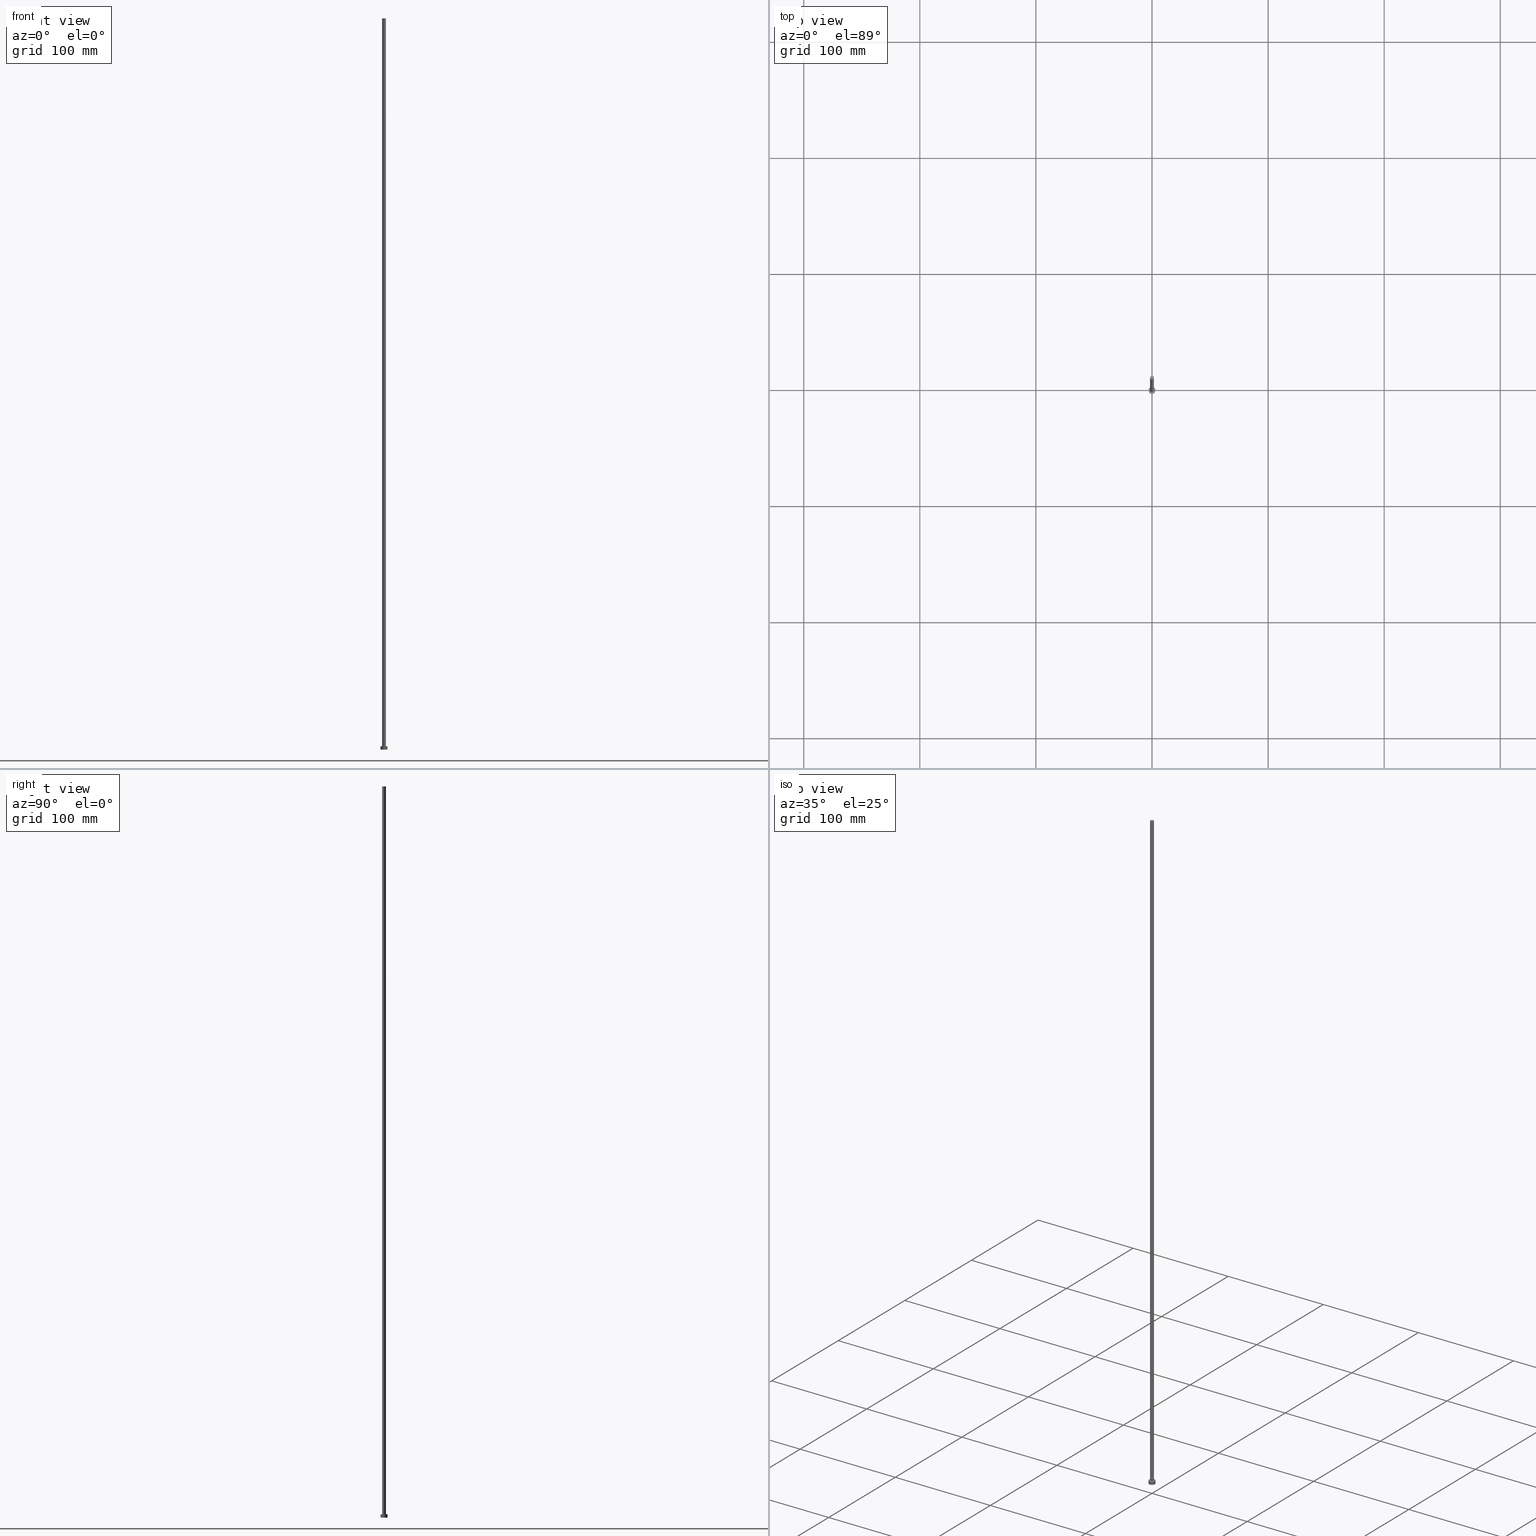
[diagram: canonical four-view strip — front | top / right | iso, engineering-drawing reading convention]
A machine part, canonical four-view strip (front | top / right | iso — engineering-drawing reading convention). The complete STEP part file that produces these views, byte-faithful:
ISO-10303-21;
HEADER;
FILE_DESCRIPTION (( 'STEP AP203' ),
    '1' );
FILE_NAME ('c56d.STEP',
    '2023-02-13T16:51:49',
    ( '' ),
    ( '' ),
    'SwSTEP 2.0',
    'SolidWorks 2019',
    '' );
FILE_SCHEMA (( 'CONFIG_CONTROL_DESIGN' ));
ENDSEC;

DATA;
#1 = PERSON_AND_ORGANIZATION_ROLE ( 'creator' ) ;
#2 = EDGE_CURVE ( 'NONE', #231, #105, #174, .T. ) ;
#3 = ORIENTED_EDGE ( 'NONE', *, *, #88, .T. ) ;
#4 = MECHANICAL_CONTEXT ( 'NONE', #71, 'mechanical' ) ;
#5 = ORIENTED_EDGE ( 'NONE', *, *, #161, .T. ) ;
#6 = CC_DESIGN_PERSON_AND_ORGANIZATION_ASSIGNMENT ( #117, #104, ( #233 ) ) ;
#7 = CYLINDRICAL_SURFACE ( 'NONE', #236, 1.600000000000000089 ) ;
#8 = DATE_TIME_ROLE ( 'creation_date' ) ;
#9 = ORIENTED_EDGE ( 'NONE', *, *, #237, .F. ) ;
#10 = DIRECTION ( 'NONE',  ( -0.000000000000000000, -0.000000000000000000, -1.000000000000000000 ) ) ;
#11 = CIRCLE ( 'NONE', #67, 1.600000000000000089 ) ;
#12 = DIRECTION ( 'NONE',  ( -1.000000000000000000, 0.000000000000000000, 0.000000000000000000 ) ) ;
#13 = FACE_OUTER_BOUND ( 'NONE', #51, .T. ) ;
#14 = DIRECTION ( 'NONE',  ( 1.000000000000000000, 0.000000000000000000, 0.000000000000000000 ) ) ;
#15 = CARTESIAN_POINT ( 'NONE',  ( 0.000000000000000000, 0.000000000000000000, 3.000000000000000000 ) ) ;
#16 = DIRECTION ( 'NONE',  ( 0.000000000000000000, 0.000000000000000000, 1.000000000000000000 ) ) ;
#17 = FACE_OUTER_BOUND ( 'NONE', #230, .T. ) ;
#18 = DIRECTION ( 'NONE',  ( 0.000000000000000000, 0.000000000000000000, 1.000000000000000000 ) ) ;
#19 = VECTOR ( 'NONE', #250, 1000.000000000000000 ) ;
#20 = ADVANCED_FACE ( 'NONE', ( #107 ), #91, .T. ) ;
#21 = PERSON_AND_ORGANIZATION_ROLE ( 'design_supplier' ) ;
#22 = PRODUCT_RELATED_PRODUCT_CATEGORY ( 'detail', '', ( #233 ) ) ;
#23 = COORDINATED_UNIVERSAL_TIME_OFFSET ( 1, 0, .AHEAD. ) ;
#24 = ORIENTED_EDGE ( 'NONE', *, *, #160, .T. ) ;
#25 = VECTOR ( 'NONE', #213, 1000.000000000000000 ) ;
#26 = DIRECTION ( 'NONE',  ( 1.000000000000000000, 0.000000000000000000, 0.000000000000000000 ) ) ;
#27 = AXIS2_PLACEMENT_3D ( 'NONE', #182, #123, #49 ) ;
#28 = ORIENTED_EDGE ( 'NONE', *, *, #133, .T. ) ;
#29 = UNCERTAINTY_MEASURE_WITH_UNIT (LENGTH_MEASURE( 1.000000000000000082E-05 ), #35, 'distance_accuracy_value', 'NONE');
#30 = ORGANIZATION ( 'NEUR�EN�', 'NEUR�EN�', '' ) ;
#31 = PERSON_AND_ORGANIZATION ( #98, #30 ) ;
#32 = ORIENTED_EDGE ( 'NONE', *, *, #160, .F. ) ;
#33 = CARTESIAN_POINT ( 'NONE',  ( 0.000000000000000000, 0.000000000000000000, 0.000000000000000000 ) ) ;
#34 = APPROVAL_PERSON_ORGANIZATION ( #239, #225, #61 ) ;
#35 =( LENGTH_UNIT ( ) NAMED_UNIT ( * ) SI_UNIT ( .MILLI., .METRE. ) );
#36 =( NAMED_UNIT ( * ) SI_UNIT ( $, .STERADIAN. ) SOLID_ANGLE_UNIT ( ) );
#37 = CARTESIAN_POINT ( 'NONE',  ( 0.000000000000000000, 0.000000000000000000, 3.000000000000000000 ) ) ;
#38 = CLOSED_SHELL ( 'NONE', ( #46, #214, #20, #141, #95, #83, #193 ) ) ;
#39 = DIRECTION ( 'NONE',  ( 0.000000000000000000, 0.000000000000000000, 1.000000000000000000 ) ) ;
#40 = SECURITY_CLASSIFICATION_LEVEL ( 'unclassified' ) ;
#41 = AXIS2_PLACEMENT_3D ( 'NONE', #187, #130, #26 ) ;
#42 = APPROVAL_DATE_TIME ( #159, #144 ) ;
#43 = ORIENTED_EDGE ( 'NONE', *, *, #125, .T. ) ;
#44 = AXIS2_PLACEMENT_3D ( 'NONE', #134, #210, #249 ) ;
#45 = VERTEX_POINT ( 'NONE', #183 ) ;
#46 = ADVANCED_FACE ( 'NONE', ( #131 ), #7, .T. ) ;
#47 = DIRECTION ( 'NONE',  ( 1.000000000000000000, 0.000000000000000000, 0.000000000000000000 ) ) ;
#48 = AXIS2_PLACEMENT_3D ( 'NONE', #155, #55, #78 ) ;
#49 = DIRECTION ( 'NONE',  ( -1.000000000000000000, 0.000000000000000000, 0.000000000000000000 ) ) ;
#50 = APPROVAL_PERSON_ORGANIZATION ( #119, #144, #184 ) ;
#51 = EDGE_LOOP ( 'NONE', ( #113, #207 ) ) ;
#52 = VERTEX_POINT ( 'NONE', #70 ) ;
#53 = AXIS2_PLACEMENT_3D ( 'NONE', #242, #167, #148 ) ;
#54 = DIRECTION ( 'NONE',  ( 1.000000000000000000, 0.000000000000000000, 0.000000000000000000 ) ) ;
#55 = DIRECTION ( 'NONE',  ( 0.000000000000000000, 0.000000000000000000, 1.000000000000000000 ) ) ;
#56 = LINE ( 'NONE', #232, #25 ) ;
#57 = LINE ( 'NONE', #211, #19 ) ;
#58 = AXIS2_PLACEMENT_3D ( 'NONE', #173, #190, #54 ) ;
#59 = PLANE ( 'NONE',  #103 ) ;
#60 = APPROVAL_DATE_TIME ( #100, #225 ) ;
#61 = APPROVAL_ROLE ( '' ) ;
#62 = AXIS2_PLACEMENT_3D ( 'NONE', #223, #205, #14 ) ;
#63 = AXIS2_PLACEMENT_3D ( 'NONE', #37, #151, #79 ) ;
#64 = APPLICATION_CONTEXT ( 'configuration controlled 3d designs of mechanical parts and assemblies' ) ;
#65 = EDGE_LOOP ( 'NONE', ( #185, #222 ) ) ;
#66 = ORIENTED_EDGE ( 'NONE', *, *, #88, .F. ) ;
#67 = AXIS2_PLACEMENT_3D ( 'NONE', #15, #253, #172 ) ;
#68 = DIRECTION ( 'NONE',  ( 0.000000000000000000, 0.000000000000000000, 1.000000000000000000 ) ) ;
#69 = COORDINATED_UNIVERSAL_TIME_OFFSET ( 1, 0, .AHEAD. ) ;
#70 = CARTESIAN_POINT ( 'NONE',  ( -1.600000000000000089, 0.000000000000000000, 630.0000000000000000 ) ) ;
#71 = APPLICATION_CONTEXT ( 'configuration controlled 3d designs of mechanical parts and assemblies' ) ;
#72 = EDGE_CURVE ( 'NONE', #52, #162, #90, .T. ) ;
#73 = CARTESIAN_POINT ( 'NONE',  ( -3.000000000000000444, 0.000000000000000000, 3.000000000000000000 ) ) ;
#74 = DIRECTION ( 'NONE',  ( -0.000000000000000000, -0.000000000000000000, -1.000000000000000000 ) ) ;
#75 = CIRCLE ( 'NONE', #53, 3.000000000000000444 ) ;
#76 = CARTESIAN_POINT ( 'NONE',  ( 1.600000000000000089, 1.959434878635765230E-16, 630.0000000000000000 ) ) ;
#77 = LOCAL_TIME ( 17, 51, 49.00000000000000000, #23 ) ;
#78 = DIRECTION ( 'NONE',  ( 1.000000000000000000, 0.000000000000000000, 0.000000000000000000 ) ) ;
#79 = DIRECTION ( 'NONE',  ( -1.000000000000000000, 0.000000000000000000, 0.000000000000000000 ) ) ;
#80 = CALENDAR_DATE ( 2023, 13, 2 ) ;
#81 = ORIENTED_EDGE ( 'NONE', *, *, #2, .F. ) ;
#82 = ORIENTED_EDGE ( 'NONE', *, *, #201, .F. ) ;
#83 = ADVANCED_FACE ( 'NONE', ( #165 ), #226, .T. ) ;
#84 = ORIENTED_EDGE ( 'NONE', *, *, #133, .F. ) ;
#85 = CALENDAR_DATE ( 2023, 13, 2 ) ;
#86 = CARTESIAN_POINT ( 'NONE',  ( 0.000000000000000000, 0.000000000000000000, 3.000000000000000000 ) ) ;
#87 = PERSON_AND_ORGANIZATION ( #98, #30 ) ;
#88 = EDGE_CURVE ( 'NONE', #203, #45, #75, .T. ) ;
#89 = ORIENTED_EDGE ( 'NONE', *, *, #178, .T. ) ;
#90 = LINE ( 'NONE', #147, #252 ) ;
#91 = CYLINDRICAL_SURFACE ( 'NONE', #179, 3.000000000000000444 ) ;
#92 = PLANE ( 'NONE',  #116 ) ;
#93 = FACE_BOUND ( 'NONE', #65, .T. ) ;
#94 = CARTESIAN_POINT ( 'NONE',  ( 3.000000000000000444, 3.673940397442060361E-16, 3.000000000000000000 ) ) ;
#95 = ADVANCED_FACE ( 'NONE', ( #238 ), #244, .F. ) ;
#96 = DIRECTION ( 'NONE',  ( 1.000000000000000000, 0.000000000000000000, -0.000000000000000000 ) ) ;
#97 = DIRECTION ( 'NONE',  ( 1.000000000000000000, 0.000000000000000000, -0.000000000000000000 ) ) ;
#98 = PERSON ( 'NEUR�EN�', 'NEUR�EN�', 'NEUR�EN�', ('NEUR�EN�'), ('NEUR�EN�'), ('NEUR�EN�') ) ;
#99 = CIRCLE ( 'NONE', #254, 1.600000000000000089 ) ;
#100 = DATE_AND_TIME ( #85, #77 ) ;
#101 = SHAPE_DEFINITION_REPRESENTATION ( #228, #118 ) ;
#102 = PERSON_AND_ORGANIZATION ( #98, #30 ) ;
#103 = AXIS2_PLACEMENT_3D ( 'NONE', #194, #16, #96 ) ;
#104 = PERSON_AND_ORGANIZATION_ROLE ( 'design_owner' ) ;
#105 = VERTEX_POINT ( 'NONE', #73 ) ;
#106 = SECURITY_CLASSIFICATION ( '', '', #40 ) ;
#107 = FACE_OUTER_BOUND ( 'NONE', #181, .T. ) ;
#108 = LOCAL_TIME ( 17, 51, 49.00000000000000000, #235 ) ;
#109 = PERSON_AND_ORGANIZATION_ROLE ( 'classification_officer' ) ;
#110 = ORIENTED_EDGE ( 'NONE', *, *, #237, .T. ) ;
#111 = VERTEX_POINT ( 'NONE', #145 ) ;
#112 = CC_DESIGN_PERSON_AND_ORGANIZATION_ASSIGNMENT ( #234, #109, ( #106 ) ) ;
#113 = ORIENTED_EDGE ( 'NONE', *, *, #247, .T. ) ;
#114 =( NAMED_UNIT ( * ) PLANE_ANGLE_UNIT ( ) SI_UNIT ( $, .RADIAN. ) );
#115 = DATE_AND_TIME ( #80, #209 ) ;
#116 = AXIS2_PLACEMENT_3D ( 'NONE', #135, #39, #97 ) ;
#117 = PERSON_AND_ORGANIZATION ( #98, #30 ) ;
#118 = ADVANCED_BREP_SHAPE_REPRESENTATION ( 'c56d', ( #243, #166 ), #128 ) ;
#119 = PERSON_AND_ORGANIZATION ( #98, #30 ) ;
#120 = COORDINATED_UNIVERSAL_TIME_OFFSET ( 1, 0, .AHEAD. ) ;
#121 = CC_DESIGN_DATE_AND_TIME_ASSIGNMENT ( #138, #8, ( #208 ) ) ;
#122 = EDGE_LOOP ( 'NONE', ( #206, #196 ) ) ;
#123 = DIRECTION ( 'NONE',  ( -0.000000000000000000, -0.000000000000000000, -1.000000000000000000 ) ) ;
#124 = ORIENTED_EDGE ( 'NONE', *, *, #72, .T. ) ;
#125 = EDGE_CURVE ( 'NONE', #111, #162, #170, .T. ) ;
#126 = CIRCLE ( 'NONE', #48, 3.000000000000000444 ) ;
#127 = CALENDAR_DATE ( 2023, 13, 2 ) ;
#128 =( GEOMETRIC_REPRESENTATION_CONTEXT ( 3 ) GLOBAL_UNCERTAINTY_ASSIGNED_CONTEXT ( ( #29 ) ) GLOBAL_UNIT_ASSIGNED_CONTEXT ( ( #35, #114, #36 ) ) REPRESENTATION_CONTEXT ( 'NONE', 'WORKASPACE' ) );
#129 = ORIENTED_EDGE ( 'NONE', *, *, #149, .F. ) ;
#130 = DIRECTION ( 'NONE',  ( 0.000000000000000000, 0.000000000000000000, 1.000000000000000000 ) ) ;
#131 = FACE_OUTER_BOUND ( 'NONE', #142, .T. ) ;
#132 = AXIS2_PLACEMENT_3D ( 'NONE', #33, #68, #150 ) ;
#133 = EDGE_CURVE ( 'NONE', #45, #203, #126, .T. ) ;
#134 = CARTESIAN_POINT ( 'NONE',  ( 0.000000000000000000, 0.000000000000000000, 630.0000000000000000 ) ) ;
#135 = CARTESIAN_POINT ( 'NONE',  ( 0.000000000000000000, 0.000000000000000000, 630.0000000000000000 ) ) ;
#136 = CC_DESIGN_APPROVAL ( #218, ( #200 ) ) ;
#137 = DIRECTION ( 'NONE',  ( 1.000000000000000000, 0.000000000000000000, 0.000000000000000000 ) ) ;
#138 = DATE_AND_TIME ( #146, #158 ) ;
#139 = COORDINATED_UNIVERSAL_TIME_OFFSET ( 1, 0, .AHEAD. ) ;
#140 = CIRCLE ( 'NONE', #44, 1.600000000000000089 ) ;
#141 = ADVANCED_FACE ( 'NONE', ( #93, #153 ), #59, .T. ) ;
#142 = EDGE_LOOP ( 'NONE', ( #82, #24, #43, #229 ) ) ;
#143 = EDGE_LOOP ( 'NONE', ( #66, #84 ) ) ;
#144 = APPROVAL ( #157, 'NEUR�EN�' ) ;
#145 = CARTESIAN_POINT ( 'NONE',  ( 1.600000000000000089, 1.959434878635765230E-16, 3.000000000000000000 ) ) ;
#146 = CALENDAR_DATE ( 2023, 13, 2 ) ;
#147 = CARTESIAN_POINT ( 'NONE',  ( -1.600000000000000089, 0.000000000000000000, 630.0000000000000000 ) ) ;
#148 = DIRECTION ( 'NONE',  ( 1.000000000000000000, 0.000000000000000000, 0.000000000000000000 ) ) ;
#149 = EDGE_CURVE ( 'NONE', #105, #231, #241, .T. ) ;
#150 = DIRECTION ( 'NONE',  ( 1.000000000000000000, 0.000000000000000000, -0.000000000000000000 ) ) ;
#151 = DIRECTION ( 'NONE',  ( -0.000000000000000000, -0.000000000000000000, -1.000000000000000000 ) ) ;
#152 = CC_DESIGN_PERSON_AND_ORGANIZATION_ASSIGNMENT ( #87, #163, ( #208 ) ) ;
#153 = FACE_OUTER_BOUND ( 'NONE', #122, .T. ) ;
#154 = DIRECTION ( 'NONE',  ( 0.000000000000000000, 0.000000000000000000, 1.000000000000000000 ) ) ;
#155 = CARTESIAN_POINT ( 'NONE',  ( 0.000000000000000000, 0.000000000000000000, 0.000000000000000000 ) ) ;
#156 = DATE_TIME_ROLE ( 'classification_date' ) ;
#157 = APPROVAL_STATUS ( 'not_yet_approved' ) ;
#158 = LOCAL_TIME ( 17, 51, 49.00000000000000000, #120 ) ;
#159 = DATE_AND_TIME ( #217, #108 ) ;
#160 = EDGE_CURVE ( 'NONE', #202, #111, #175, .T. ) ;
#161 = EDGE_CURVE ( 'NONE', #231, #45, #56, .T. ) ;
#162 = VERTEX_POINT ( 'NONE', #212 ) ;
#163 = PERSON_AND_ORGANIZATION_ROLE ( 'creator' ) ;
#164 = DIRECTION ( 'NONE',  ( -0.000000000000000000, -0.000000000000000000, -1.000000000000000000 ) ) ;
#165 = FACE_OUTER_BOUND ( 'NONE', #168, .T. ) ;
#166 = AXIS2_PLACEMENT_3D ( 'NONE', #224, #18, #47 ) ;
#167 = DIRECTION ( 'NONE',  ( 0.000000000000000000, 0.000000000000000000, 1.000000000000000000 ) ) ;
#168 = EDGE_LOOP ( 'NONE', ( #32, #199, #124, #89 ) ) ;
#169 = CYLINDRICAL_SURFACE ( 'NONE', #63, 3.000000000000000444 ) ;
#170 = CIRCLE ( 'NONE', #62, 1.600000000000000089 ) ;
#171 = CARTESIAN_POINT ( 'NONE',  ( 0.000000000000000000, 0.000000000000000000, 630.0000000000000000 ) ) ;
#172 = DIRECTION ( 'NONE',  ( 1.000000000000000000, 0.000000000000000000, 0.000000000000000000 ) ) ;
#173 = CARTESIAN_POINT ( 'NONE',  ( 0.000000000000000000, 0.000000000000000000, 3.000000000000000000 ) ) ;
#174 = CIRCLE ( 'NONE', #41, 3.000000000000000444 ) ;
#175 = LINE ( 'NONE', #251, #197 ) ;
#176 = CC_DESIGN_APPROVAL ( #225, ( #208 ) ) ;
#177 = APPROVAL_DATE_TIME ( #204, #218 ) ;
#178 = EDGE_CURVE ( 'NONE', #162, #111, #11, .T. ) ;
#179 = AXIS2_PLACEMENT_3D ( 'NONE', #86, #164, #246 ) ;
#180 = APPLICATION_PROTOCOL_DEFINITION ( 'international standard', 'config_control_design', 1994, #64 ) ;
#181 = EDGE_LOOP ( 'NONE', ( #189, #129, #110, #3 ) ) ;
#182 = CARTESIAN_POINT ( 'NONE',  ( 0.000000000000000000, 0.000000000000000000, 630.0000000000000000 ) ) ;
#183 = CARTESIAN_POINT ( 'NONE',  ( 3.000000000000000444, 3.673940397442060361E-16, 0.000000000000000000 ) ) ;
#184 = APPROVAL_ROLE ( '' ) ;
#185 = ORIENTED_EDGE ( 'NONE', *, *, #178, .F. ) ;
#186 = CC_DESIGN_PERSON_AND_ORGANIZATION_ASSIGNMENT ( #31, #21, ( #200 ) ) ;
#187 = CARTESIAN_POINT ( 'NONE',  ( 0.000000000000000000, 0.000000000000000000, 3.000000000000000000 ) ) ;
#188 = DESIGN_CONTEXT ( 'detailed design', #64, 'design' ) ;
#189 = ORIENTED_EDGE ( 'NONE', *, *, #161, .F. ) ;
#190 = DIRECTION ( 'NONE',  ( 0.000000000000000000, 0.000000000000000000, 1.000000000000000000 ) ) ;
#191 = APPLICATION_PROTOCOL_DEFINITION ( 'international standard', 'config_control_design', 1994, #71 ) ;
#192 = CC_DESIGN_APPROVAL ( #144, ( #106 ) ) ;
#193 = ADVANCED_FACE ( 'NONE', ( #13 ), #92, .T. ) ;
#194 = CARTESIAN_POINT ( 'NONE',  ( 0.000000000000000000, 0.000000000000000000, 3.000000000000000000 ) ) ;
#195 = APPROVAL_STATUS ( 'not_yet_approved' ) ;
#196 = ORIENTED_EDGE ( 'NONE', *, *, #2, .T. ) ;
#197 = VECTOR ( 'NONE', #248, 1000.000000000000000 ) ;
#198 = APPROVAL_STATUS ( 'not_yet_approved' ) ;
#199 = ORIENTED_EDGE ( 'NONE', *, *, #247, .F. ) ;
#200 = PRODUCT_DEFINITION_FORMATION_WITH_SPECIFIED_SOURCE ( 'LIBOVOLN�', '', #233, .NOT_KNOWN. ) ;
#201 = EDGE_CURVE ( 'NONE', #202, #52, #99, .T. ) ;
#202 = VERTEX_POINT ( 'NONE', #76 ) ;
#203 = VERTEX_POINT ( 'NONE', #215 ) ;
#204 = DATE_AND_TIME ( #127, #221 ) ;
#205 = DIRECTION ( 'NONE',  ( 0.000000000000000000, 0.000000000000000000, 1.000000000000000000 ) ) ;
#206 = ORIENTED_EDGE ( 'NONE', *, *, #149, .T. ) ;
#207 = ORIENTED_EDGE ( 'NONE', *, *, #201, .T. ) ;
#208 = PRODUCT_DEFINITION ( 'NEZN�M�', '', #200, #188 ) ;
#209 = LOCAL_TIME ( 17, 51, 49.00000000000000000, #139 ) ;
#210 = DIRECTION ( 'NONE',  ( 0.000000000000000000, 0.000000000000000000, 1.000000000000000000 ) ) ;
#211 = CARTESIAN_POINT ( 'NONE',  ( -3.000000000000000444, 0.000000000000000000, 3.000000000000000000 ) ) ;
#212 = CARTESIAN_POINT ( 'NONE',  ( -1.600000000000000089, 0.000000000000000000, 3.000000000000000000 ) ) ;
#213 = DIRECTION ( 'NONE',  ( -0.000000000000000000, -0.000000000000000000, -1.000000000000000000 ) ) ;
#214 = ADVANCED_FACE ( 'NONE', ( #17 ), #169, .T. ) ;
#215 = CARTESIAN_POINT ( 'NONE',  ( -3.000000000000000444, 0.000000000000000000, 0.000000000000000000 ) ) ;
#216 = PERSON_AND_ORGANIZATION ( #98, #30 ) ;
#217 = CALENDAR_DATE ( 2023, 13, 2 ) ;
#218 = APPROVAL ( #198, 'NEUR�EN�' ) ;
#219 = APPROVAL_PERSON_ORGANIZATION ( #102, #218, #220 ) ;
#220 = APPROVAL_ROLE ( '' ) ;
#221 = LOCAL_TIME ( 17, 51, 49.00000000000000000, #69 ) ;
#222 = ORIENTED_EDGE ( 'NONE', *, *, #125, .F. ) ;
#223 = CARTESIAN_POINT ( 'NONE',  ( 0.000000000000000000, 0.000000000000000000, 3.000000000000000000 ) ) ;
#224 = CARTESIAN_POINT ( 'NONE',  ( 0.000000000000000000, 0.000000000000000000, 0.000000000000000000 ) ) ;
#225 = APPROVAL ( #195, 'NEUR�EN�' ) ;
#226 = CYLINDRICAL_SURFACE ( 'NONE', #27, 1.600000000000000089 ) ;
#227 = CC_DESIGN_SECURITY_CLASSIFICATION ( #106, ( #200 ) ) ;
#228 = PRODUCT_DEFINITION_SHAPE ( 'NONE', 'NONE',  #208 ) ;
#229 = ORIENTED_EDGE ( 'NONE', *, *, #72, .F. ) ;
#230 = EDGE_LOOP ( 'NONE', ( #81, #5, #28, #9 ) ) ;
#231 = VERTEX_POINT ( 'NONE', #94 ) ;
#232 = CARTESIAN_POINT ( 'NONE',  ( 3.000000000000000444, 3.673940397442060361E-16, 3.000000000000000000 ) ) ;
#233 = PRODUCT ( 'c56d', 'c56d', '', ( #4 ) ) ;
#234 = PERSON_AND_ORGANIZATION ( #98, #30 ) ;
#235 = COORDINATED_UNIVERSAL_TIME_OFFSET ( 1, 0, .AHEAD. ) ;
#236 = AXIS2_PLACEMENT_3D ( 'NONE', #240, #10, #12 ) ;
#237 = EDGE_CURVE ( 'NONE', #105, #203, #57, .T. ) ;
#238 = FACE_OUTER_BOUND ( 'NONE', #143, .T. ) ;
#239 = PERSON_AND_ORGANIZATION ( #98, #30 ) ;
#240 = CARTESIAN_POINT ( 'NONE',  ( 0.000000000000000000, 0.000000000000000000, 630.0000000000000000 ) ) ;
#241 = CIRCLE ( 'NONE', #58, 3.000000000000000444 ) ;
#242 = CARTESIAN_POINT ( 'NONE',  ( 0.000000000000000000, 0.000000000000000000, 0.000000000000000000 ) ) ;
#243 = MANIFOLD_SOLID_BREP ( 'P�idat vysunut�m3', #38 ) ;
#244 = PLANE ( 'NONE',  #132 ) ;
#245 = CC_DESIGN_PERSON_AND_ORGANIZATION_ASSIGNMENT ( #216, #1, ( #200 ) ) ;
#246 = DIRECTION ( 'NONE',  ( -1.000000000000000000, 0.000000000000000000, 0.000000000000000000 ) ) ;
#247 = EDGE_CURVE ( 'NONE', #52, #202, #140, .T. ) ;
#248 = DIRECTION ( 'NONE',  ( -0.000000000000000000, -0.000000000000000000, -1.000000000000000000 ) ) ;
#249 = DIRECTION ( 'NONE',  ( 1.000000000000000000, 0.000000000000000000, 0.000000000000000000 ) ) ;
#250 = DIRECTION ( 'NONE',  ( -0.000000000000000000, -0.000000000000000000, -1.000000000000000000 ) ) ;
#251 = CARTESIAN_POINT ( 'NONE',  ( 1.600000000000000089, 1.959434878635765230E-16, 630.0000000000000000 ) ) ;
#252 = VECTOR ( 'NONE', #74, 1000.000000000000000 ) ;
#253 = DIRECTION ( 'NONE',  ( 0.000000000000000000, 0.000000000000000000, 1.000000000000000000 ) ) ;
#254 = AXIS2_PLACEMENT_3D ( 'NONE', #171, #154, #137 ) ;
#255 = CC_DESIGN_DATE_AND_TIME_ASSIGNMENT ( #115, #156, ( #106 ) ) ;
ENDSEC;
END-ISO-10303-21;
